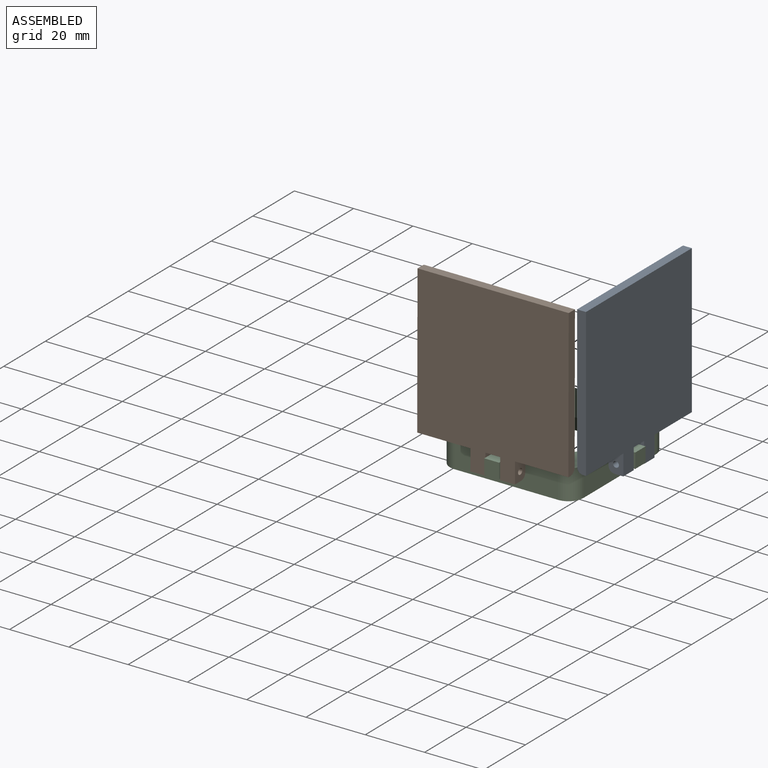
[diagram: assembled view]
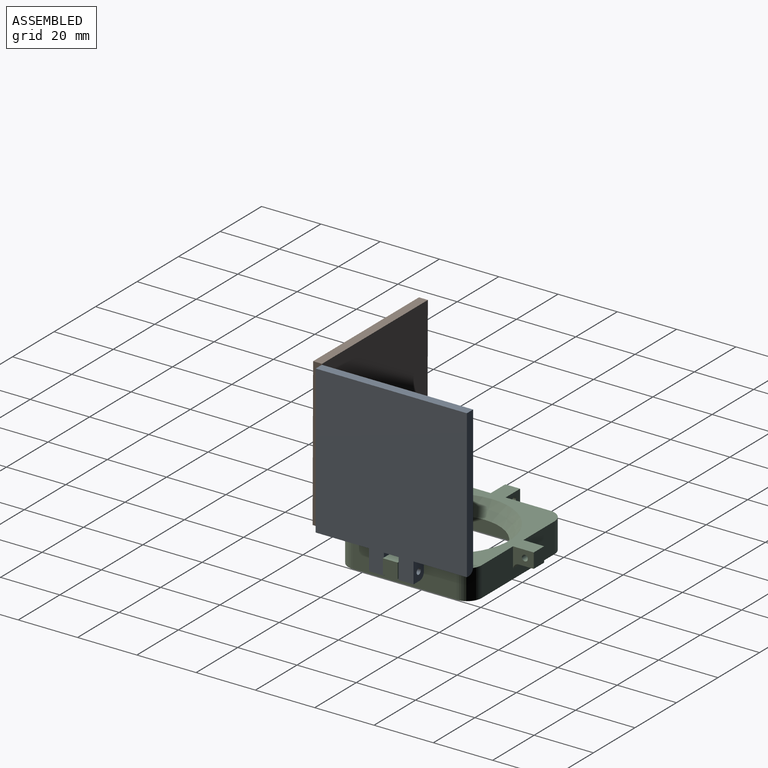
[diagram: assembled view, second angle]
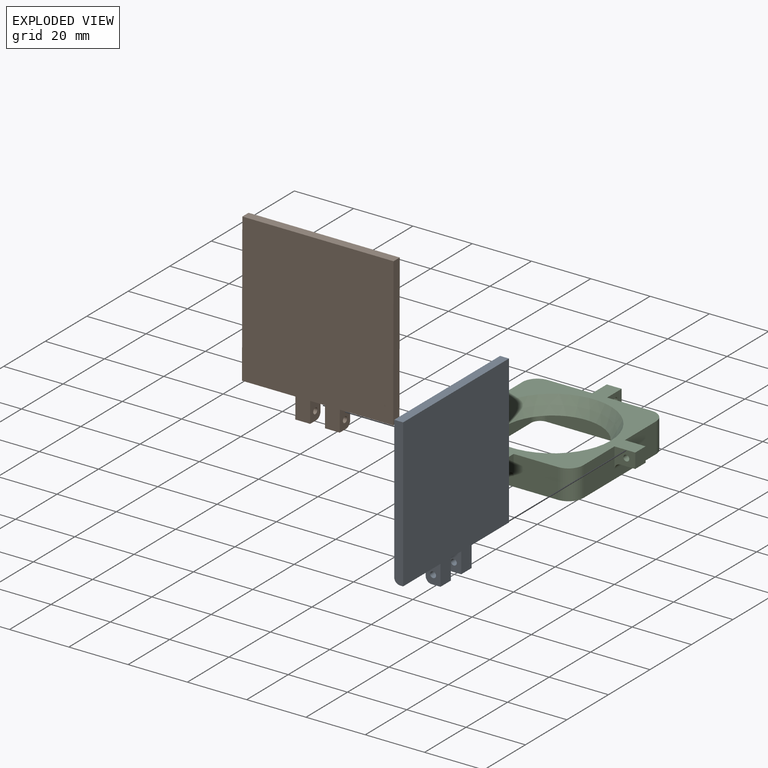
[diagram: exploded view]
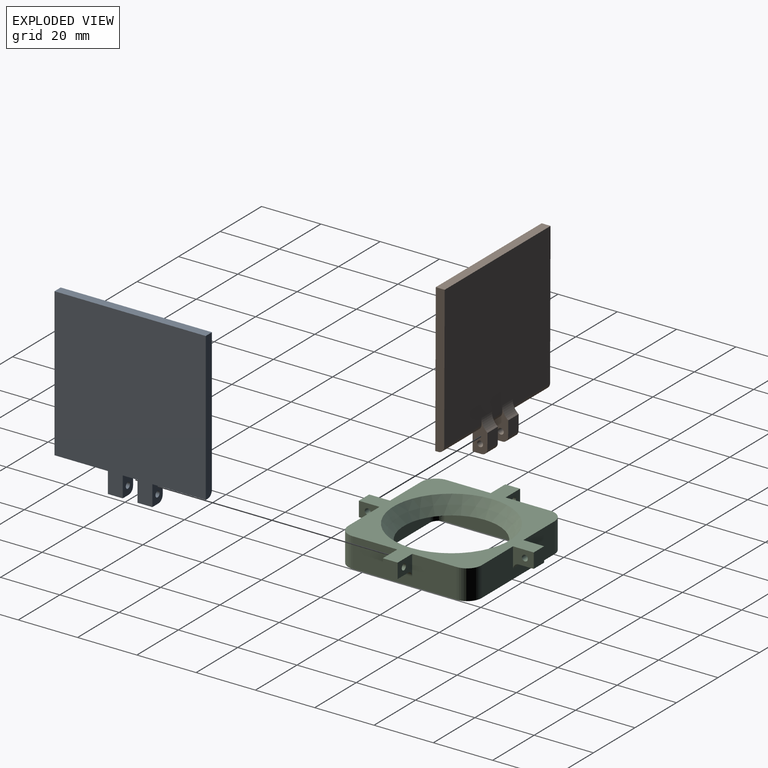
[diagram: exploded view, second angle]
ASSEMBLY  parts=3 mates=2
PART A: 25 faces, bbox 51x57x5 mm
  f0: plane 11x5mm, normal (1,0,0), area 34.3mm2, adj f2,f3,f4,f11,f15,f17,f18,f22
  f1: plane 11x5mm, normal (-1,0,0), area 34.3mm2, adj f2,f3,f4,f5,f15,f17,f18,f20
  f2: plane 5x3mm, normal (0,-1,0), area 15mm2, adj f0,f1,f4,f23
  f3: plane 5x5mm, normal (0,0,1), area 25mm2, adj f0,f1,f18,f23
  f4: plane 57x51mm, normal (0,0,-1), area 2620mm2, adj f0,f1,f2,f5,f6,f7,f8,f10
  f5: plane 5x1mm, normal (0,-1,0), area 5mm2, adj f1,f4,f6,f20
  f6: plane 11x5mm, normal (1,0,0), area 34.3mm2, adj f4,f5,f8,f9,f15,f16,f19,f20
  f7: plane 11x5mm, normal (-1,0,0), area 34.3mm2, adj f4,f8,f9,f10,f15,f16,f19,f21
  f8: plane 5x3mm, normal (0,-1,0), area 15mm2, adj f4,f6,f7,f24
  f9: plane 5x5mm, normal (0,0,1), area 25mm2, adj f6,f7,f19,f24
  f10: plane 18x1mm, normal (0,-1,0), area 18mm2, adj f4,f7,f14,f21
  f11: plane 18x1mm, normal (0,-1,0), area 18mm2, adj f0,f4,f12,f22
  f12: plane 50x3mm, normal (1,0,0), area 149.1mm2, adj f4,f11,f13,f15,f22
  f13: plane 51x3mm, normal (0,1,0), area 153mm2, adj f4,f12,f14,f15
  f14: plane 50x3mm, normal (-1,0,0), area 149.1mm2, adj f4,f10,f13,f15,f21
  f15: plane 51x48mm, normal (0,0,1), area 2428mm2, adj f0,f1,f6,f7,f12,f13,f14,f18
  f16: cylinder r=1mm len=5mm, axis (-1,0,0), area 31.4mm2, adj f6,f7
  f17: cylinder r=1mm len=5mm, axis (-1,0,0), area 31.4mm2, adj f0,f1
  f18: cylinder r=5mm len=5mm, axis (-1,0,0), area 23.2mm2, adj f0,f1,f3,f15
  f19: cylinder r=5mm len=5mm, axis (1,0,0), area 23.2mm2, adj f6,f7,f9,f15
  f20: cylinder r=2mm len=5mm, axis (-1,0,0), area 15.7mm2, adj f1,f5,f6,f15
  f21: cylinder r=2mm len=18mm, axis (-1,0,0), area 56.5mm2, adj f7,f10,f14,f15
  f22: cylinder r=2mm len=18mm, axis (-1,0,0), area 56.5mm2, adj f0,f11,f12,f15
  f23: cylinder r=2mm len=5mm, axis (-1,0,0), area 15.7mm2, adj f0,f1,f2,f3
  f24: cylinder r=2mm len=5mm, axis (-1,0,0), area 15.7mm2, adj f6,f7,f8,f9
PART B: same geometry as A
PART C: 52 faces, bbox 59x59x10 mm
  f0: plane 35x10mm, normal (0,-1,0), area 315mm2, adj f4,f9,f19,f22,f27,f28,f51
  f1: plane 35x10mm, normal (1,0,0), area 315mm2, adj f4,f9,f19,f20,f42,f43,f48
  f2: plane 35x10mm, normal (0,1,0), area 315mm2, adj f4,f9,f20,f21,f37,f38,f49
  f3: plane 35x10mm, normal (-1,0,0), area 315mm2, adj f4,f9,f21,f22,f32,f33,f50
  f4: plane 59x59mm, normal (0,0,1), area 948.8mm2, adj f0,f1,f2,f3,f19,f20,f21,f22
  f5: plane 29x5mm, normal (-1,0,0), area 145mm2, adj f9,f10,f23,f26
  f6: plane 29x5mm, normal (0,1,0), area 145mm2, adj f9,f10,f23,f24
  f7: plane 29x5mm, normal (1,0,0), area 145mm2, adj f9,f10,f24,f25
  f8: plane 29x5mm, normal (0,-1,0), area 145mm2, adj f9,f10,f25,f26
  f9: plane 45x45mm, normal (0,0,-1), area 786.3mm2, adj f0,f1,f2,f3,f5,f6,f7,f8
  f10: plane 35x35mm, normal (0,0,-1), area 402.8mm2, adj f5,f6,f7,f8,f11,f13,f15,f17
  f11: cylinder r=0.9mm len=1.8mm, axis (0,0,1), area 2.8mm2, adj f10,f12
  f12: plane 1.8x1.8mm, normal (0,0,-1), area 2.5mm2, adj f11
  f13: cylinder r=0.9mm len=1.8mm, axis (0,0,1), area 2.8mm2, adj f10,f14
  f14: plane 1.8x1.8mm, normal (0,0,-1), area 2.5mm2, adj f13
  f15: cylinder r=0.9mm len=1.8mm, axis (0,0,1), area 2.8mm2, adj f10,f16
  f16: plane 1.8x1.8mm, normal (0,0,-1), area 2.5mm2, adj f15
  f17: cylinder r=0.9mm len=1.8mm, axis (0,0,1), area 2.8mm2, adj f10,f18
  f18: plane 1.8x1.8mm, normal (0,0,-1), area 2.5mm2, adj f17
  f19: cylinder r=5mm len=10mm, axis (0,0,1), area 78.5mm2, adj f0,f1,f4,f9
  f20: cylinder r=5mm len=10mm, axis (0,0,-1), area 78.5mm2, adj f1,f2,f4,f9
  f21: cylinder r=5mm len=10mm, axis (0,0,1), area 78.5mm2, adj f2,f3,f4,f9
  f22: cylinder r=5mm len=10mm, axis (0,0,-1), area 78.5mm2, adj f0,f3,f4,f9
  f23: cylinder r=3mm len=5mm, axis (0,0,1), area 23.6mm2, adj f5,f6,f9,f10
  f24: cylinder r=3mm len=5mm, axis (0,0,-1), area 23.6mm2, adj f6,f7,f9,f10
  f25: cylinder r=3mm len=5mm, axis (0,0,1), area 23.6mm2, adj f7,f8,f9,f10
  f26: cylinder r=3mm len=5mm, axis (0,0,-1), area 23.6mm2, adj f5,f8,f9,f10
  f27: plane 7x7mm, normal (1,0,0), area 32.7mm2, adj f0,f4,f29,f30,f31,f51
  f28: plane 7x7mm, normal (-1,0,0), area 32.7mm2, adj f0,f4,f29,f30,f31,f51
  f29: plane 5x5mm, normal (0,0,-1), area 25mm2, adj f27,f28,f30,f51
  f30: plane 5x5mm, normal (0,-1,0), area 25mm2, adj f4,f27,f28,f29
  f31: cylinder r=1mm len=5mm, axis (-1,0,0), area 31.4mm2, adj f27,f28
  f32: plane 7x7mm, normal (0,-1,0), area 32.7mm2, adj f3,f4,f34,f35,f36,f50
  f33: plane 7x7mm, normal (0,1,0), area 32.7mm2, adj f3,f4,f34,f35,f36,f50
  f34: plane 5x5mm, normal (0,0,-1), area 25mm2, adj f32,f33,f35,f50
  f35: plane 5x5mm, normal (-1,0,0), area 25mm2, adj f4,f32,f33,f34
  f36: cylinder r=1mm len=5mm, axis (0,1,0), area 31.4mm2, adj f32,f33
  f37: plane 7x7mm, normal (-1,0,0), area 32.7mm2, adj f2,f4,f39,f40,f41,f49
  f38: plane 7x7mm, normal (1,0,0), area 32.7mm2, adj f2,f4,f39,f40,f41,f49
  f39: plane 5x5mm, normal (0,0,-1), area 25mm2, adj f37,f38,f40,f49
  f40: plane 5x5mm, normal (0,1,0), area 25mm2, adj f4,f37,f38,f39
  f41: cylinder r=1mm len=5mm, axis (1,0,0), area 31.4mm2, adj f37,f38
  f42: plane 7x7mm, normal (0,1,0), area 32.7mm2, adj f1,f4,f44,f45,f46,f48
  f43: plane 7x7mm, normal (0,-1,0), area 32.7mm2, adj f1,f4,f44,f45,f46,f48
  f44: plane 5x5mm, normal (0,0,-1), area 25mm2, adj f42,f43,f45,f48
  f45: plane 5x5mm, normal (1,0,0), area 25mm2, adj f4,f42,f43,f44
  f46: cylinder r=1mm len=5mm, axis (0,-1,0), area 31.4mm2, adj f42,f43
  f47: cone r=16mm half-angle=35deg, axis (0,0,1), area 680.8mm2, adj f4,f10
  f48: cylinder r=2mm len=5mm, axis (0,-1,0), area 15.7mm2, adj f1,f42,f43,f44
  f49: cylinder r=2mm len=5mm, axis (1,0,0), area 15.7mm2, adj f2,f37,f38,f39
  f50: cylinder r=2mm len=5mm, axis (0,-1,0), area 15.7mm2, adj f3,f32,f33,f34
  f51: cylinder r=2mm len=5mm, axis (1,0,0), area 15.7mm2, adj f0,f27,f28,f29
PLACE A rot(axis=(0.58,-0.58,-0.58),120deg) t=(29,76.11,-32.57)mm
PLACE B rot(axis=(0,0.71,0.71),180deg) t=(0,47.12,-32.56)mm
PLACE C t=(0,76.11,-39.07)mm fixed
MATE revolute B.f16 <-> C.f31  axis (1,0,0) through (-2.5,49.61,-36.57)mm
MATE revolute C.f46 <-> A.f16  axis (0,-1,0) through (26.5,73.61,-36.57)mm
